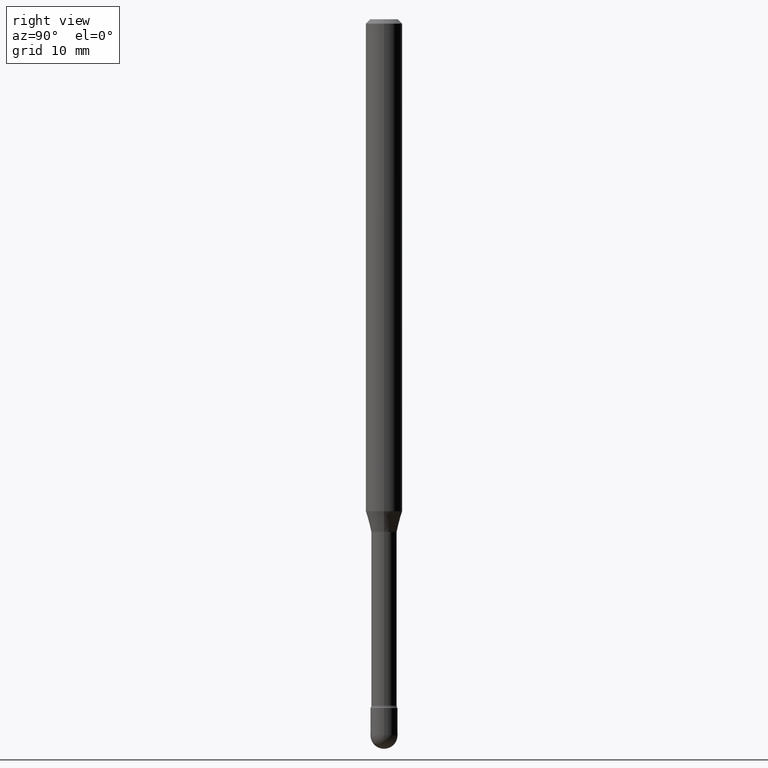
[diagram: clean part render]
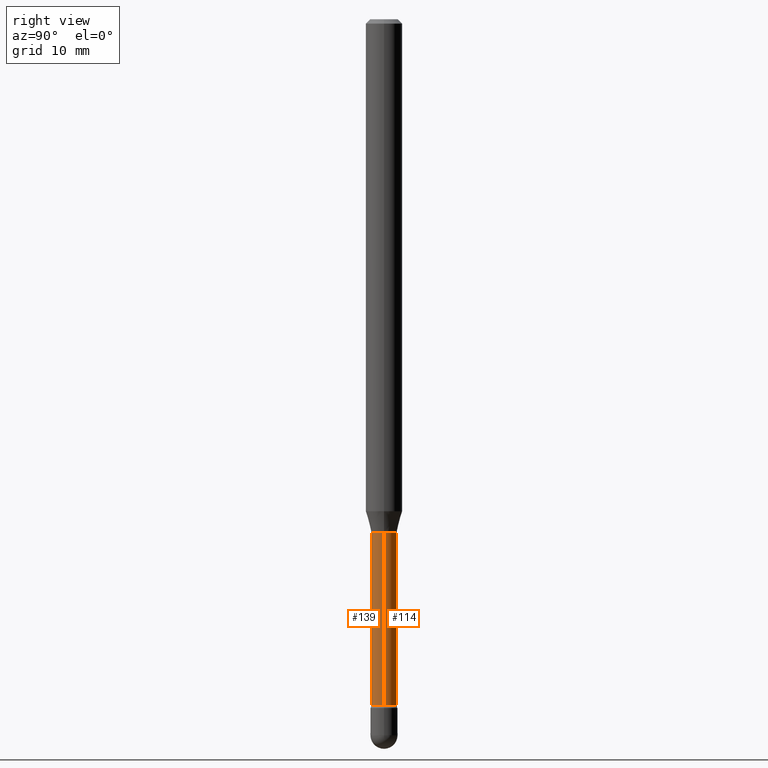
[diagram: same view with one multi-face feature highlighted, each face labeled with its STEP entity id]
A machine part, right view. The highlighted faces form ONE feature: a constant-radius fillet chain: 2 tangent blend faces with common blend radius 1.11 mm. The faces share edges in the B-rep.
Their STEP definitions:
[1] entity #139 (Cylinder):
#1 = CIRCLE ( 'NONE', #83, 0.04370000000000000273 ) ;
#5 = DIRECTION ( 'NONE',  ( -2.445468806185136877E-29, 3.491481338843145188E-15, 1.000000000000000000 ) ) ;
#17 = ORIENTED_EDGE ( 'NONE', *, *, #90, .F. ) ;
#25 = VERTEX_POINT ( 'NONE', #429 ) ;
#38 = DIRECTION ( 'NONE',  ( 1.000000000000000000, -6.982962677686271444E-15, 0.000000000000000000 ) ) ;
#39 = LINE ( 'NONE', #140, #505 ) ;
#41 = AXIS2_PLACEMENT_3D ( 'NONE', #453, #425, #157 ) ;
#60 = CYLINDRICAL_SURFACE ( 'NONE', #41, 0.04370000000000005130 ) ;
#61 = VERTEX_POINT ( 'NONE', #545 ) ;
#83 = AXIS2_PLACEMENT_3D ( 'NONE', #288, #179, #264 ) ;
#90 = EDGE_CURVE ( 'NONE', #544, #61, #1, .T. ) ;
#138 = CARTESIAN_POINT ( 'NONE',  ( 0.04370000000000005130, -3.051554690148885367E-16, 4.780733988912481833E-16 ) ) ;
#139 = ADVANCED_FACE ( 'NONE', ( #282 ), #60, .T. ) ;
#140 = CARTESIAN_POINT ( 'NONE',  ( -0.04370000000000005130, 3.105071755271658714E-16, 4.780733988912439432E-16 ) ) ;
#157 = DIRECTION ( 'NONE',  ( 1.000000000000000000, -6.982962677686266711E-15, 4.858289198259657046E-29 ) ) ;
#179 = DIRECTION ( 'NONE',  ( -2.445468806185136597E-29, 3.491481338843145583E-15, 1.000000000000000000 ) ) ;
#190 = VECTOR ( 'NONE', #444, 39.37007874015748143 ) ;
#264 = DIRECTION ( 'NONE',  ( 1.000000000000000000, -6.982962677686263555E-15, 0.000000000000000000 ) ) ;
#265 = CARTESIAN_POINT ( 'NONE',  ( 5.749964850443326902E-29, -8.209425907846575104E-15, -2.351273030308291823 ) ) ;
#278 = LINE ( 'NONE', #138, #190 ) ;
#282 = FACE_OUTER_BOUND ( 'NONE', #500, .T. ) ;
#288 = CARTESIAN_POINT ( 'NONE',  ( 4.299072504802695232E-29, -6.137936164586641226E-15, -1.757974787463811195 ) ) ;
#295 = AXIS2_PLACEMENT_3D ( 'NONE', #265, #440, #38 ) ;
#314 = CARTESIAN_POINT ( 'NONE',  ( 0.04370000000000009294, -8.514581376861464972E-15, -2.351273030308291823 ) ) ;
#354 = ORIENTED_EDGE ( 'NONE', *, *, #539, .T. ) ;
#412 = CIRCLE ( 'NONE', #295, 0.04370000000000009294 ) ;
#425 = DIRECTION ( 'NONE',  ( -2.445468806185136597E-29, 3.491481338843145583E-15, 1.000000000000000000 ) ) ;
#427 = ORIENTED_EDGE ( 'NONE', *, *, #480, .T. ) ;
#429 = CARTESIAN_POINT ( 'NONE',  ( -0.04370000000000009294, -7.904206159930393879E-15, -2.351273030308291823 ) ) ;
#440 = DIRECTION ( 'NONE',  ( -2.445468806185136597E-29, 3.491481338843145583E-15, 1.000000000000000000 ) ) ;
#444 = DIRECTION ( 'NONE',  ( -2.445468806185136877E-29, 3.491481338843145188E-15, 1.000000000000000000 ) ) ;
#453 = CARTESIAN_POINT ( 'NONE',  ( -1.169113584055446105E-44, 1.669184350826100908E-30, 4.780733988912460139E-16 ) ) ;
#472 = ORIENTED_EDGE ( 'NONE', *, *, #486, .F. ) ;
#480 = EDGE_CURVE ( 'NONE', #542, #61, #278, .T. ) ;
#482 = CARTESIAN_POINT ( 'NONE',  ( -0.04370000000000000273, -6.863173860689444660E-15, -1.757974787463811195 ) ) ;
#486 = EDGE_CURVE ( 'NONE', #25, #544, #39, .T. ) ;
#500 = EDGE_LOOP ( 'NONE', ( #472, #354, #427, #17 ) ) ;
#505 = VECTOR ( 'NONE', #5, 39.37007874015748143 ) ;
#539 = EDGE_CURVE ( 'NONE', #25, #542, #412, .T. ) ;
#542 = VERTEX_POINT ( 'NONE', #314 ) ;
#544 = VERTEX_POINT ( 'NONE', #482 ) ;
#545 = CARTESIAN_POINT ( 'NONE',  ( 0.04370000000000000273, -6.443091633601531094E-15, -1.757974787463811195 ) ) ;
[2] entity #114 (Cylinder):
#5 = DIRECTION ( 'NONE',  ( -2.445468806185136877E-29, 3.491481338843145188E-15, 1.000000000000000000 ) ) ;
#7 = DIRECTION ( 'NONE',  ( 1.000000000000000000, -6.982962677686271444E-15, 0.000000000000000000 ) ) ;
#13 = EDGE_CURVE ( 'NONE', #542, #25, #36, .T. ) ;
#25 = VERTEX_POINT ( 'NONE', #429 ) ;
#36 = CIRCLE ( 'NONE', #73, 0.04370000000000009294 ) ;
#39 = LINE ( 'NONE', #140, #505 ) ;
#58 = DIRECTION ( 'NONE',  ( 1.000000000000000000, -6.982962677686266711E-15, 4.858289198259657046E-29 ) ) ;
#61 = VERTEX_POINT ( 'NONE', #545 ) ;
#73 = AXIS2_PLACEMENT_3D ( 'NONE', #125, #452, #7 ) ;
#114 = ADVANCED_FACE ( 'NONE', ( #408 ), #252, .T. ) ;
#115 = DIRECTION ( 'NONE',  ( 1.000000000000000000, -6.982962677686263555E-15, 0.000000000000000000 ) ) ;
#125 = CARTESIAN_POINT ( 'NONE',  ( 5.749964850443326902E-29, -8.209425907846575104E-15, -2.351273030308291823 ) ) ;
#131 = EDGE_CURVE ( 'NONE', #61, #544, #439, .T. ) ;
#138 = CARTESIAN_POINT ( 'NONE',  ( 0.04370000000000005130, -3.051554690148885367E-16, 4.780733988912481833E-16 ) ) ;
#140 = CARTESIAN_POINT ( 'NONE',  ( -0.04370000000000005130, 3.105071755271658714E-16, 4.780733988912439432E-16 ) ) ;
#190 = VECTOR ( 'NONE', #444, 39.37007874015748143 ) ;
#203 = CARTESIAN_POINT ( 'NONE',  ( 4.299072504802695232E-29, -6.137936164586641226E-15, -1.757974787463811195 ) ) ;
#252 = CYLINDRICAL_SURFACE ( 'NONE', #306, 0.04370000000000005130 ) ;
#278 = LINE ( 'NONE', #138, #190 ) ;
#306 = AXIS2_PLACEMENT_3D ( 'NONE', #464, #326, #58 ) ;
#312 = ORIENTED_EDGE ( 'NONE', *, *, #131, .F. ) ;
#314 = CARTESIAN_POINT ( 'NONE',  ( 0.04370000000000009294, -8.514581376861464972E-15, -2.351273030308291823 ) ) ;
#326 = DIRECTION ( 'NONE',  ( -2.445468806185136597E-29, 3.491481338843145583E-15, 1.000000000000000000 ) ) ;
#336 = DIRECTION ( 'NONE',  ( -2.445468806185136597E-29, 3.491481338843145583E-15, 1.000000000000000000 ) ) ;
#347 = EDGE_LOOP ( 'NONE', ( #394, #465, #312, #536 ) ) ;
#374 = AXIS2_PLACEMENT_3D ( 'NONE', #203, #336, #115 ) ;
#394 = ORIENTED_EDGE ( 'NONE', *, *, #13, .T. ) ;
#408 = FACE_OUTER_BOUND ( 'NONE', #347, .T. ) ;
#429 = CARTESIAN_POINT ( 'NONE',  ( -0.04370000000000009294, -7.904206159930393879E-15, -2.351273030308291823 ) ) ;
#439 = CIRCLE ( 'NONE', #374, 0.04370000000000000273 ) ;
#444 = DIRECTION ( 'NONE',  ( -2.445468806185136877E-29, 3.491481338843145188E-15, 1.000000000000000000 ) ) ;
#452 = DIRECTION ( 'NONE',  ( -2.445468806185136597E-29, 3.491481338843145583E-15, 1.000000000000000000 ) ) ;
#464 = CARTESIAN_POINT ( 'NONE',  ( -1.169113584055446105E-44, 1.669184350826100908E-30, 4.780733988912460139E-16 ) ) ;
#465 = ORIENTED_EDGE ( 'NONE', *, *, #486, .T. ) ;
#480 = EDGE_CURVE ( 'NONE', #542, #61, #278, .T. ) ;
#482 = CARTESIAN_POINT ( 'NONE',  ( -0.04370000000000000273, -6.863173860689444660E-15, -1.757974787463811195 ) ) ;
#486 = EDGE_CURVE ( 'NONE', #25, #544, #39, .T. ) ;
#505 = VECTOR ( 'NONE', #5, 39.37007874015748143 ) ;
#536 = ORIENTED_EDGE ( 'NONE', *, *, #480, .F. ) ;
#542 = VERTEX_POINT ( 'NONE', #314 ) ;
#544 = VERTEX_POINT ( 'NONE', #482 ) ;
#545 = CARTESIAN_POINT ( 'NONE',  ( 0.04370000000000000273, -6.443091633601531094E-15, -1.757974787463811195 ) ) ;